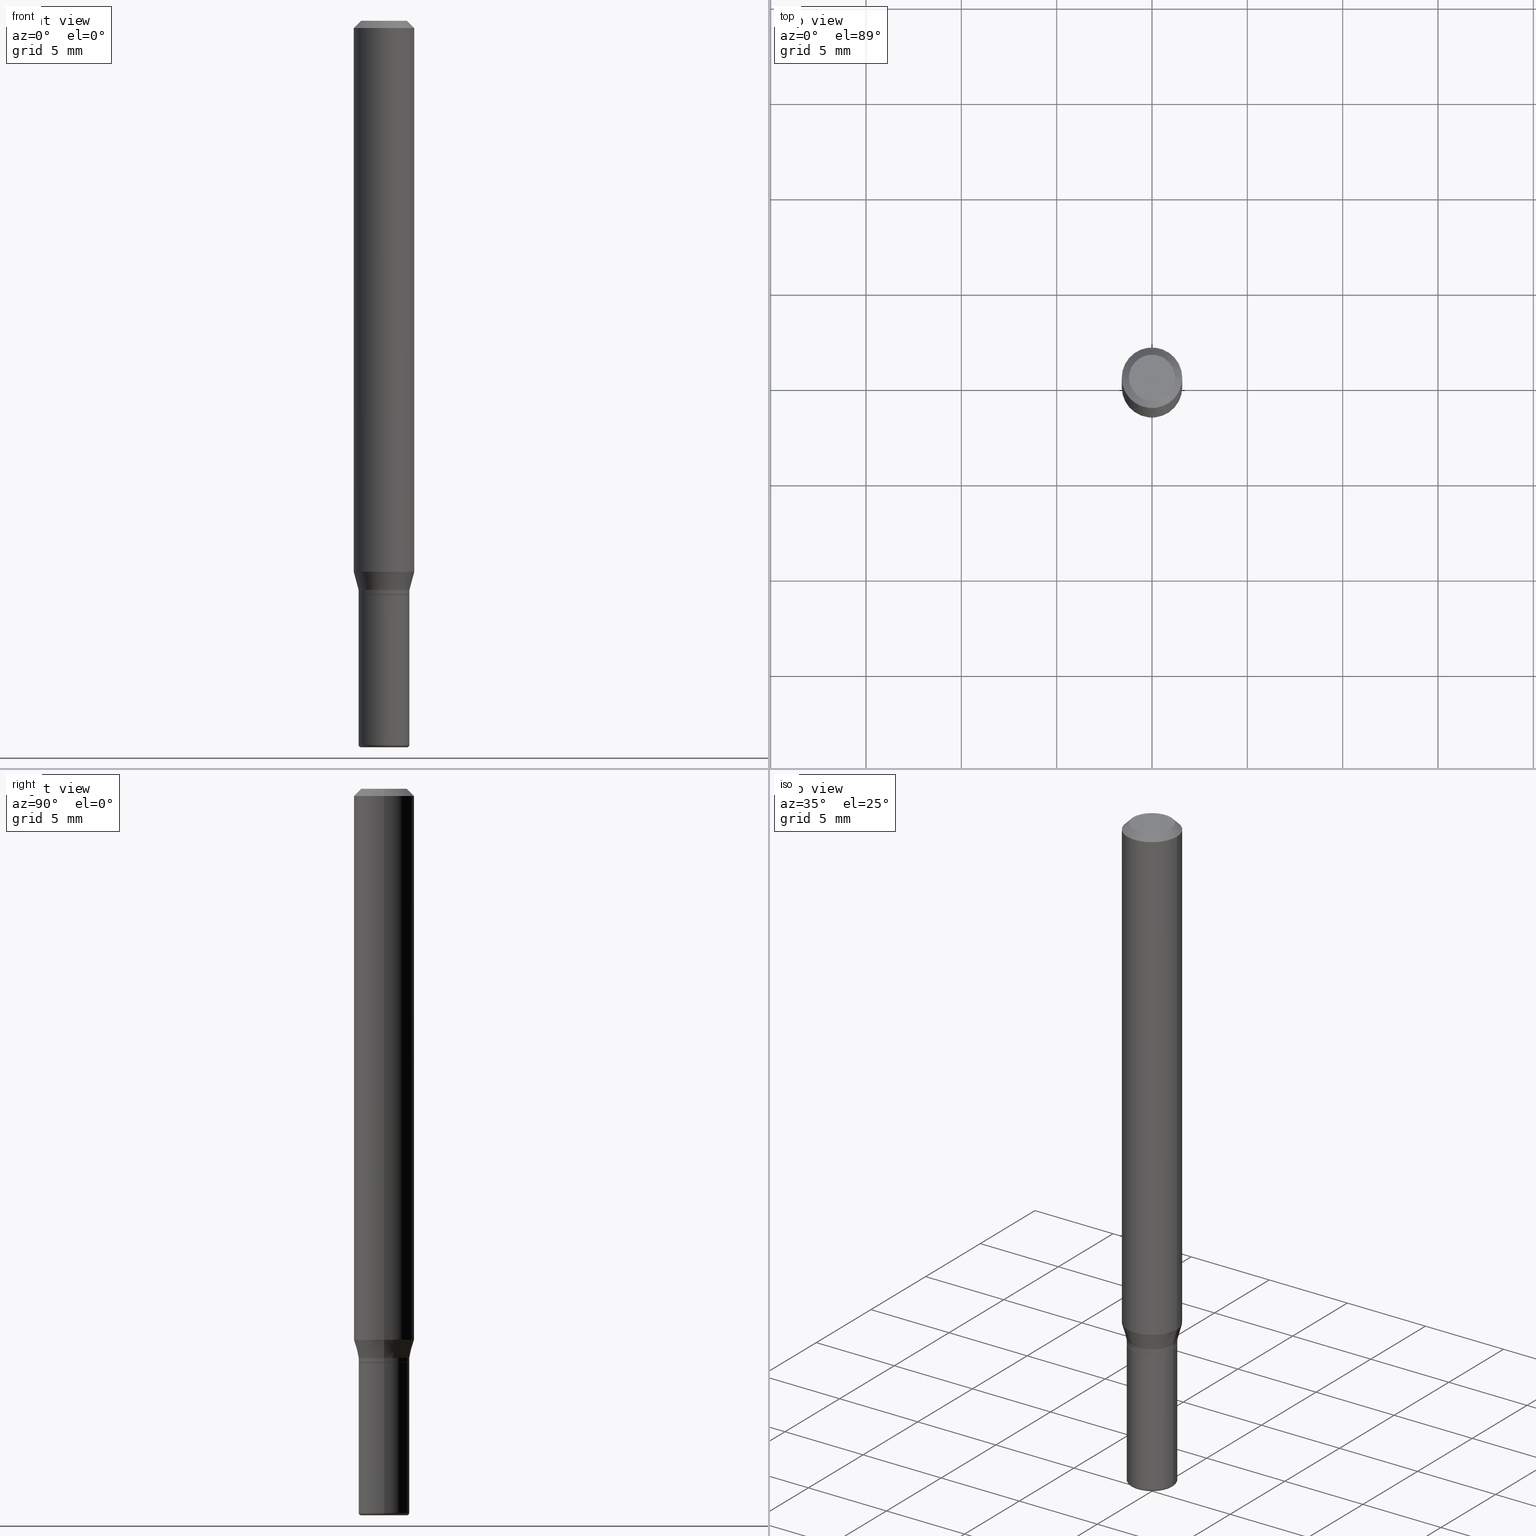
[diagram: canonical four-view strip — front | top / right | iso, engineering-drawing reading convention]
A machine part, canonical four-view strip (front | top / right | iso — engineering-drawing reading convention). The complete STEP part file that produces these views, byte-faithful:
ISO-10303-21;
HEADER;
FILE_DESCRIPTION (( 'STEP AP203' ),
    '1' );
FILE_NAME ('08602.STEP',
    '2024-02-29T19:56:55',
    ( '' ),
    ( '' ),
    'SwSTEP 2.0',
    'SolidWorks 2023',
    '' );
FILE_SCHEMA (( 'CONFIG_CONTROL_DESIGN' ));
ENDSEC;

DATA;
#1 = EDGE_CURVE ( 'NONE', #332, #110, #194, .T. ) ;
#2 = VECTOR ( 'NONE', #123, 39.37007874015748143 ) ;
#3 = ORIENTED_EDGE ( 'NONE', *, *, #243, .T. ) ;
#4 = ADVANCED_FACE ( 'NONE', ( #57 ), #365, .T. ) ;
#5 = VERTEX_POINT ( 'NONE', #177 ) ;
#6 = CARTESIAN_POINT ( 'NONE',  ( 0.05250000000000008826, -3.666055405785296038E-16, 2.559992807292870916E-30 ) ) ;
#7 = EDGE_CURVE ( 'NONE', #388, #237, #25, .T. ) ;
#8 = LOCAL_TIME ( 14, 56, 55.00000000000000000, #222 ) ;
#9 = ORIENTED_EDGE ( 'NONE', *, *, #477, .F. ) ;
#10 = CARTESIAN_POINT ( 'NONE',  ( 0.05250000000000007438, -4.469096113719226630E-15, -1.175000000000000488 ) ) ;
#11 = EDGE_LOOP ( 'NONE', ( #89, #486, #40, #33 ) ) ;
#12 = ADVANCED_FACE ( 'NONE', ( #182 ), #507, .T. ) ;
#13 = DIRECTION ( 'NONE',  ( -1.000000000000000000, 7.105427357601061812E-15, 0.000000000000000000 ) ) ;
#14 = AXIS2_PLACEMENT_3D ( 'NONE', #234, #316, #404 ) ;
#15 = CARTESIAN_POINT ( 'NONE',  ( 2.873425847267536398E-29, -4.102490573140697470E-15, -1.175000000000000488 ) ) ;
#16 = CARTESIAN_POINT ( 'NONE',  ( 0.000000000000000000, 0.000000000000000000, 0.000000000000000000 ) ) ;
#17 = CARTESIAN_POINT ( 'NONE',  ( -0.06250000000000000000, 4.440892098500626162E-16, -3.074334431409316114E-30 ) ) ;
#18 = CARTESIAN_POINT ( 'NONE',  ( 3.582686580359767159E-29, -5.359686688179454114E-15, -1.500000000000000444 ) ) ;
#19 = ORIENTED_EDGE ( 'NONE', *, *, #173, .T. ) ;
#20 = LINE ( 'NONE', #17, #2 ) ;
#21 = CARTESIAN_POINT ( 'NONE',  ( -0.05250000000000007438, -3.729455636866644935E-15, -1.175000000000000488 ) ) ;
#22 = LINE ( 'NONE', #179, #195 ) ;
#23 = DIRECTION ( 'NONE',  ( 1.000000000000000000, -6.982962677686258033E-15, 0.000000000000000000 ) ) ;
#24 = EDGE_LOOP ( 'NONE', ( #439, #183, #240, #336 ) ) ;
#25 = CIRCLE ( 'NONE', #437, 0.05249999999999999806 ) ;
#26 = LOCAL_TIME ( 14, 56, 55.00000000000000000, #98 ) ;
#27 = PERSON_AND_ORGANIZATION ( #435, #208 ) ;
#28 = ADVANCED_FACE ( 'NONE', ( #128 ), #213, .F. ) ;
#29 = FACE_OUTER_BOUND ( 'NONE', #428, .T. ) ;
#30 = APPROVAL_DATE_TIME ( #514, #338 ) ;
#31 = AXIS2_PLACEMENT_3D ( 'NONE', #15, #168, #288 ) ;
#32 = AXIS2_PLACEMENT_3D ( 'NONE', #452, #238, #226 ) ;
#33 = ORIENTED_EDGE ( 'NONE', *, *, #171, .F. ) ;
#34 = APPROVAL ( #374, 'UNSPECIFIED' ) ;
#35 = EDGE_LOOP ( 'NONE', ( #361, #196 ) ) ;
#36 = ORIENTED_EDGE ( 'NONE', *, *, #425, .F. ) ;
#37 = DIRECTION ( 'NONE',  ( -6.982962677686266711E-15, -1.000000000000000000, 3.491481338843145583E-15 ) ) ;
#38 = AXIS2_PLACEMENT_3D ( 'NONE', #232, #37, #360 ) ;
#39 = VECTOR ( 'NONE', #421, 39.37007874015748143 ) ;
#40 = ORIENTED_EDGE ( 'NONE', *, *, #352, .F. ) ;
#41 = DIRECTION ( 'NONE',  ( -2.445468806185136597E-29, 3.491481338843145583E-15, 1.000000000000000000 ) ) ;
#42 = DIRECTION ( 'NONE',  ( 1.000000000000000000, -6.982962677686258822E-15, 0.000000000000000000 ) ) ;
#43 = EDGE_CURVE ( 'NONE', #142, #359, #282, .T. ) ;
#44 = CIRCLE ( 'NONE', #239, 0.05250000000000007438 ) ;
#45 = LOCAL_TIME ( 14, 56, 55.00000000000000000, #347 ) ;
#46 = EDGE_CURVE ( 'NONE', #359, #388, #455, .T. ) ;
#47 = CARTESIAN_POINT ( 'NONE',  ( 2.896657800926294581E-29, -4.135659645859706826E-15, -1.184500000000000108 ) ) ;
#48 = DIRECTION ( 'NONE',  ( 0.000000000000000000, 0.000000000000000000, 1.000000000000000000 ) ) ;
#49 = DIRECTION ( 'NONE',  ( 1.000000000000000000, -6.982962677686266711E-15, 4.876176775795935793E-29 ) ) ;
#50 = DIRECTION ( 'NONE',  ( -2.445468806185136597E-29, 3.491481338843145583E-15, 1.000000000000000000 ) ) ;
#51 = TOROIDAL_SURFACE ( 'NONE', #465, 0.04749999999999999362, 0.005000000000000177046 ) ;
#52 = CARTESIAN_POINT ( 'NONE',  ( -0.04749999999999998668, -4.873221937037561039E-15, -1.500000000000000444 ) ) ;
#53 = ORIENTED_EDGE ( 'NONE', *, *, #77, .T. ) ;
#54 = CC_DESIGN_PERSON_AND_ORGANIZATION_ASSIGNMENT ( #269, #189, ( #324 ) ) ;
#55 = DIRECTION ( 'NONE',  ( -2.445468806185136597E-29, 3.491481338843145583E-15, 1.000000000000000000 ) ) ;
#56 = EDGE_CURVE ( 'NONE', #359, #64, #454, .T. ) ;
#57 = FACE_OUTER_BOUND ( 'NONE', #498, .T. ) ;
#58 = DIRECTION ( 'NONE',  ( 1.000000000000000000, -6.982962677686266711E-15, 4.876176775795935793E-29 ) ) ;
#59 = DIRECTION ( 'NONE',  ( 1.000000000000000000, -6.982962677686263555E-15, 4.883557194083111780E-29 ) ) ;
#60 = ORIENTED_EDGE ( 'NONE', *, *, #149, .T. ) ;
#61 = DIRECTION ( 'NONE',  ( -0.7071067811865479058, 2.468850131082261005E-15, -0.7071067811865471286 ) ) ;
#62 = CC_DESIGN_DATE_AND_TIME_ASSIGNMENT ( #105, #70, ( #324 ) ) ;
#63 = CARTESIAN_POINT ( 'NONE',  ( -6.680649051745406845E-45, 9.538196290434862081E-31, 2.731847993664263218E-16 ) ) ;
#64 = VERTEX_POINT ( 'NONE', #245 ) ;
#65 = CIRCLE ( 'NONE', #14, 0.05200000000000008782 ) ;
#66 = CALENDAR_DATE ( 2024, 29, 2 ) ;
#67 = DIRECTION ( 'NONE',  ( 1.000000000000000000, -6.982962677686263555E-15, 4.883557194083111780E-29 ) ) ;
#68 = EDGE_CURVE ( 'NONE', #318, #331, #44, .T. ) ;
#69 = APPROVAL_DATE_TIME ( #227, #468 ) ;
#70 = DATE_TIME_ROLE ( 'classification_date' ) ;
#71 = AXIS2_PLACEMENT_3D ( 'NONE', #84, #211, #453 ) ;
#72 = VERTEX_POINT ( 'NONE', #174 ) ;
#73 = ADVANCED_FACE ( 'NONE', ( #83 ), #204, .F. ) ;
#74 = ORIENTED_EDGE ( 'NONE', *, *, #334, .F. ) ;
#75 = ORIENTED_EDGE ( 'NONE', *, *, #190, .F. ) ;
#76 = DIRECTION ( 'NONE',  ( -2.445468806185136877E-29, 3.491481338843145188E-15, 1.000000000000000000 ) ) ;
#77 = EDGE_CURVE ( 'NONE', #332, #328, #330, .T. ) ;
#78 = AXIS2_PLACEMENT_3D ( 'NONE', #471, #262, #430 ) ;
#79 = CARTESIAN_POINT ( 'NONE',  ( 3.668203209277632395E-31, -5.237222008264614861E-17, -0.01499999999999970281 ) ) ;
#80 = FACE_OUTER_BOUND ( 'NONE', #384, .T. ) ;
#81 = CIRCLE ( 'NONE', #385, 0.04750000000000000749 ) ;
#82 = AXIS2_PLACEMENT_3D ( 'NONE', #499, #185, #345 ) ;
#83 = FACE_OUTER_BOUND ( 'NONE', #372, .T. ) ;
#84 = CARTESIAN_POINT ( 'NONE',  ( 3.668203209277706016E-29, -5.237222008264719754E-15, -1.500000000000000444 ) ) ;
#85 = DIRECTION ( 'NONE',  ( -2.445468806185136597E-29, 3.491481338843145583E-15, 1.000000000000000000 ) ) ;
#86 = CARTESIAN_POINT ( 'NONE',  ( 0.04750000000000000749, -4.035134999187568762E-16, 2.731847993664288856E-16 ) ) ;
#87 = EDGE_CURVE ( 'NONE', #400, #244, #199, .T. ) ;
#88 = DIRECTION ( 'NONE',  ( 0.7071067811865479058, -7.319954787623257623E-15, -0.7071067811865471286 ) ) ;
#89 = ORIENTED_EDGE ( 'NONE', *, *, #377, .T. ) ;
#90 = LINE ( 'NONE', #369, #136 ) ;
#91 = AXIS2_PLACEMENT_3D ( 'NONE', #329, #184, #342 ) ;
#92 = CARTESIAN_POINT ( 'NONE',  ( 3.655975865246779122E-29, -5.219764601570503141E-15, -1.495000000000000107 ) ) ;
#93 = DIRECTION ( 'NONE',  ( -2.445468806185136597E-29, 3.491481338843145583E-15, 1.000000000000000000 ) ) ;
#94 = DIRECTION ( 'NONE',  ( -2.438088387897960049E-29, 3.491481338843145188E-15, 1.000000000000000000 ) ) ;
#95 = CARTESIAN_POINT ( 'NONE',  ( 0.05250000000000008132, -3.666055405785295545E-16, 2.559992807292870215E-30 ) ) ;
#96 = DATE_AND_TIME ( #481, #503 ) ;
#97 = ORIENTED_EDGE ( 'NONE', *, *, #224, .T. ) ;
#98 = COORDINATED_UNIVERSAL_TIME_OFFSET ( 5, 0, .BEHIND. ) ;
#99 = CIRCLE ( 'NONE', #296, 0.05249999999999999806 ) ;
#100 = CIRCLE ( 'NONE', #337, 0.05250000000000008826 ) ;
#101 = CARTESIAN_POINT ( 'NONE',  ( 0.000000000000000000, 0.000000000000000000, 0.000000000000000000 ) ) ;
#102 = DIRECTION ( 'NONE',  ( -2.445468806185136597E-29, 3.491481338843145583E-15, 1.000000000000000000 ) ) ;
#103 = DIRECTION ( 'NONE',  ( -1.000000000000000000, 6.982962677686266711E-15, 0.000000000000000000 ) ) ;
#104 = PRODUCT_RELATED_PRODUCT_CATEGORY ( 'detail', '', ( #170 ) ) ;
#105 = DATE_AND_TIME ( #433, #26 ) ;
#106 = ORIENTED_EDGE ( 'NONE', *, *, #119, .F. ) ;
#107 = SECURITY_CLASSIFICATION_LEVEL ( 'unclassified' ) ;
#108 = AXIS2_PLACEMENT_3D ( 'NONE', #158, #41, #276 ) ;
#109 = CC_DESIGN_APPROVAL ( #338, ( #405 ) ) ;
#110 = VERTEX_POINT ( 'NONE', #255 ) ;
#111 = DIRECTION ( 'NONE',  ( 1.000000000000000000, -6.982962677686266711E-15, 0.000000000000000000 ) ) ;
#112 = DIRECTION ( 'NONE',  ( 0.2588190451025205729, 1.565188264969628081E-15, 0.9659258262890684232 ) ) ;
#113 = ORIENTED_EDGE ( 'NONE', *, *, #319, .F. ) ;
#114 = DIRECTION ( 'NONE',  ( 1.000000000000000000, -6.982962677686263555E-15, 0.000000000000000000 ) ) ;
#115 = ADVANCED_FACE ( 'NONE', ( #250 ), #370, .T. ) ;
#116 = ORIENTED_EDGE ( 'NONE', *, *, #450, .F. ) ;
#117 = CARTESIAN_POINT ( 'NONE',  ( 2.897880535329386822E-29, -4.137405386529127541E-15, -1.185000000000000053 ) ) ;
#118 = ADVANCED_BREP_SHAPE_REPRESENTATION ( '08602', ( #219, #401, #366 ), #394 ) ;
#119 = EDGE_CURVE ( 'NONE', #331, #318, #488, .T. ) ;
#120 = AXIS2_PLACEMENT_3D ( 'NONE', #376, #55, #165 ) ;
#121 = DIMENSIONAL_EXPONENTS ( 1.000000000000000000, 0.000000000000000000, 0.000000000000000000, 0.000000000000000000, 0.000000000000000000, 0.000000000000000000, 0.000000000000000000 ) ;
#122 = PRODUCT_DEFINITION_SHAPE ( 'NONE', 'NONE',  #441 ) ;
#123 = DIRECTION ( 'NONE',  ( -2.445468806185136877E-29, 3.491481338843145188E-15, 1.000000000000000000 ) ) ;
#124 = DIRECTION ( 'NONE',  ( -2.445468806185136597E-29, 3.491481338843145583E-15, 1.000000000000000000 ) ) ;
#125 = CARTESIAN_POINT ( 'NONE',  ( 2.897880535329386822E-29, -4.137405386529127541E-15, -1.185000000000000053 ) ) ;
#126 = CIRCLE ( 'NONE', #38, 0.005000000000000177046 ) ;
#127 = AXIS2_PLACEMENT_3D ( 'NONE', #101, #102, #58 ) ;
#128 = FACE_OUTER_BOUND ( 'NONE', #233, .T. ) ;
#129 = ORIENTED_EDGE ( 'NONE', *, *, #43, .F. ) ;
#130 = DIRECTION ( 'NONE',  ( -2.438088387897960049E-29, 3.491481338843145188E-15, 1.000000000000000000 ) ) ;
#131 = VERTEX_POINT ( 'NONE', #416 ) ;
#132 = FACE_OUTER_BOUND ( 'NONE', #402, .T. ) ;
#133 = DIRECTION ( 'NONE',  ( -2.445468806185136597E-29, 3.491481338843145583E-15, 1.000000000000000000 ) ) ;
#134 = CARTESIAN_POINT ( 'NONE',  ( 3.655975865246779122E-29, -5.219764601570503141E-15, -1.495000000000000107 ) ) ;
#135 = CLOSED_SHELL ( 'NONE', ( #442, #274, #380, #407, #154, #28 ) ) ;
#136 = VECTOR ( 'NONE', #409, 39.37007874015748143 ) ;
#137 = DIRECTION ( 'NONE',  ( 1.000000000000000000, -6.982962677686265133E-15, 0.000000000000000000 ) ) ;
#138 = CONICAL_SURFACE ( 'NONE', #32, 0.06250000000000000000, 0.7853981633974488341 ) ;
#139 = CARTESIAN_POINT ( 'NONE',  ( -0.05200000000000008782, -3.765273936759763915E-15, -1.185000000000000053 ) ) ;
#140 = DIRECTION ( 'NONE',  ( 1.000000000000000000, -6.982962677686270655E-15, 0.000000000000000000 ) ) ;
#141 = DIRECTION ( 'NONE',  ( 1.000000000000000000, -6.982962677686265922E-15, 4.876176775795935793E-29 ) ) ;
#142 = VERTEX_POINT ( 'NONE', #52 ) ;
#143 = PERSON_AND_ORGANIZATION_ROLE ( 'creator' ) ;
#144 = CARTESIAN_POINT ( 'NONE',  ( -0.06250000000000000000, 3.840629472727455270E-16, -0.01499999999999970281 ) ) ;
#145 = PERSON_AND_ORGANIZATION_ROLE ( 'design_supplier' ) ;
#146 = AXIS2_PLACEMENT_3D ( 'NONE', #18, #130, #141 ) ;
#147 = APPROVAL_PERSON_ORGANIZATION ( #458, #34, #327 ) ;
#148 = CC_DESIGN_PERSON_AND_ORGANIZATION_ASSIGNMENT ( #260, #427, ( #405 ) ) ;
#149 = EDGE_CURVE ( 'NONE', #318, #294, #420, .T. ) ;
#150 = APPROVAL_DATE_TIME ( #96, #34 ) ;
#151 = ORIENTED_EDGE ( 'NONE', *, *, #1, .T. ) ;
#152 = APPROVAL_STATUS ( 'not_yet_approved' ) ;
#153 = EDGE_LOOP ( 'NONE', ( #163, #311, #273, #231 ) ) ;
#154 = ADVANCED_FACE ( 'NONE', ( #378 ), #51, .T. ) ;
#155 = ORIENTED_EDGE ( 'NONE', *, *, #87, .F. ) ;
#156 = ORIENTED_EDGE ( 'NONE', *, *, #344, .F. ) ;
#157 = EDGE_CURVE ( 'NONE', #244, #318, #298, .T. ) ;
#158 = CARTESIAN_POINT ( 'NONE',  ( 2.897880535329386822E-29, -4.137405386529127541E-15, -1.185000000000000053 ) ) ;
#159 = AXIS2_PLACEMENT_3D ( 'NONE', #212, #214, #466 ) ;
#160 = AXIS2_PLACEMENT_3D ( 'NONE', #419, #209, #140 ) ;
#161 = EDGE_CURVE ( 'NONE', #5, #328, #180, .T. ) ;
#162 = DIRECTION ( 'NONE',  ( -2.445468806185136597E-29, 3.491481338843145583E-15, 1.000000000000000000 ) ) ;
#163 = ORIENTED_EDGE ( 'NONE', *, *, #352, .T. ) ;
#164 = DIRECTION ( 'NONE',  ( -2.445468806185136597E-29, 3.491481338843145583E-15, 1.000000000000000000 ) ) ;
#165 = DIRECTION ( 'NONE',  ( 1.000000000000000000, -6.982962677686270655E-15, 0.000000000000000000 ) ) ;
#166 = CIRCLE ( 'NONE', #108, 0.05200000000000008782 ) ;
#167 = ORIENTED_EDGE ( 'NONE', *, *, #377, .F. ) ;
#168 = DIRECTION ( 'NONE',  ( -2.445468806185136597E-29, 3.491481338843145583E-15, 1.000000000000000000 ) ) ;
#169 = LINE ( 'NONE', #289, #39 ) ;
#170 = PRODUCT ( '08602', '08602', '', ( #251 ) ) ;
#171 = EDGE_CURVE ( 'NONE', #131, #64, #126, .T. ) ;
#172 = CARTESIAN_POINT ( 'NONE',  ( 3.668203209277632395E-31, -5.237222008264614861E-17, -0.01499999999999970281 ) ) ;
#173 = EDGE_CURVE ( 'NONE', #351, #284, #166, .T. ) ;
#174 = CARTESIAN_POINT ( 'NONE',  ( 0.06250000000000000000, -4.408621882993678121E-15, -1.137679491924311836 ) ) ;
#175 = PERSON_AND_ORGANIZATION ( #435, #208 ) ;
#176 = ORIENTED_EDGE ( 'NONE', *, *, #344, .T. ) ;
#177 = CARTESIAN_POINT ( 'NONE',  ( -0.06250000000000000000, -1.568190258010403558E-15, -0.01499999999999970281 ) ) ;
#178 =( LENGTH_UNIT ( ) NAMED_UNIT ( * ) SI_UNIT ( $, .METRE. ) );
#179 = CARTESIAN_POINT ( 'NONE',  ( 0.05250000000000007438, -4.469096113719226630E-15, -1.175000000000000488 ) ) ;
#180 = CIRCLE ( 'NONE', #356, 0.06250000000000000000 ) ;
#181 = AXIS2_PLACEMENT_3D ( 'NONE', #125, #162, #283 ) ;
#182 = FACE_OUTER_BOUND ( 'NONE', #308, .T. ) ;
#183 = ORIENTED_EDGE ( 'NONE', *, *, #314, .F. ) ;
#184 = DIRECTION ( 'NONE',  ( -2.445468806185136597E-29, 3.491481338843145583E-15, 1.000000000000000000 ) ) ;
#185 = DIRECTION ( 'NONE',  ( -2.445468806185136597E-29, 3.491481338843145583E-15, 1.000000000000000000 ) ) ;
#186 = COORDINATED_UNIVERSAL_TIME_OFFSET ( 5, 0, .BEHIND. ) ;
#187 = AXIS2_PLACEMENT_3D ( 'NONE', #285, #373, #49 ) ;
#188 = ORIENTED_EDGE ( 'NONE', *, *, #236, .T. ) ;
#189 = PERSON_AND_ORGANIZATION_ROLE ( 'classification_officer' ) ;
#190 = EDGE_CURVE ( 'NONE', #142, #131, #309, .T. ) ;
#191 = ORIENTED_EDGE ( 'NONE', *, *, #477, .T. ) ;
#192 = ORIENTED_EDGE ( 'NONE', *, *, #314, .T. ) ;
#193 = CARTESIAN_POINT ( 'NONE',  ( 3.668203209277706016E-29, -5.237222008264719754E-15, -1.500000000000000444 ) ) ;
#194 = CIRCLE ( 'NONE', #159, 0.04750000000000000749 ) ;
#195 = VECTOR ( 'NONE', #112, 39.37007874015748143 ) ;
#196 = ORIENTED_EDGE ( 'NONE', *, *, #224, .F. ) ;
#197 = LINE ( 'NONE', #6, #335 ) ;
#198 = CARTESIAN_POINT ( 'NONE',  ( -0.05250000000000008826, -3.762624709585653503E-15, -1.184500000000000108 ) ) ;
#199 = CIRCLE ( 'NONE', #317, 0.05250000000000008826 ) ;
#200 = AXIS2_PLACEMENT_3D ( 'NONE', #325, #50, #490 ) ;
#201 = APPROVAL_PERSON_ORGANIZATION ( #517, #338, #265 ) ;
#202 = ORIENTED_EDGE ( 'NONE', *, *, #362, .T. ) ;
#203 = CARTESIAN_POINT ( 'NONE',  ( 2.873425847267536398E-29, -4.102490573140697470E-15, -1.175000000000000488 ) ) ;
#204 = PLANE ( 'NONE',  #403 ) ;
#205 = CARTESIAN_POINT ( 'NONE',  ( 0.06250000000000000000, -4.888073874380378612E-16, -0.01499999999999970281 ) ) ;
#206 = DIRECTION ( 'NONE',  ( 1.000000000000000000, -6.982962677686263555E-15, 0.000000000000000000 ) ) ;
#207 = CIRCLE ( 'NONE', #120, 0.06250000000000000000 ) ;
#208 = ORGANIZATION ( 'UNSPECIFIED', 'UNSPECIFIED', '' ) ;
#209 = DIRECTION ( 'NONE',  ( -2.445468806185136597E-29, 3.491481338843145583E-15, 1.000000000000000000 ) ) ;
#210 = DIRECTION ( 'NONE',  ( -0.2588190451025205729, 5.211531920934545520E-15, 0.9659258262890684232 ) ) ;
#211 = DIRECTION ( 'NONE',  ( -2.445468806185136597E-29, 3.491481338843145583E-15, 1.000000000000000000 ) ) ;
#212 = CARTESIAN_POINT ( 'NONE',  ( -6.680649051745406845E-45, 9.538196290434862081E-31, 2.731847993664263218E-16 ) ) ;
#213 = PLANE ( 'NONE',  #146 ) ;
#214 = DIRECTION ( 'NONE',  ( -2.445468806185136597E-29, 3.491481338843145583E-15, 1.000000000000000000 ) ) ;
#215 = CARTESIAN_POINT ( 'NONE',  ( -0.05250000000000008132, 3.730349362740531754E-16, -2.582440922383829865E-30 ) ) ;
#216 =( NAMED_UNIT ( * ) PLANE_ANGLE_UNIT ( ) SI_UNIT ( $, .RADIAN. ) );
#217 = ORIENTED_EDGE ( 'NONE', *, *, #68, .T. ) ;
#218 = VECTOR ( 'NONE', #259, 39.37007874015748143 ) ;
#219 = MANIFOLD_SOLID_BREP ( 'Body-Move/Copy2[1]', #135 ) ;
#220 = ORIENTED_EDGE ( 'NONE', *, *, #223, .T. ) ;
#221 = CARTESIAN_POINT ( 'NONE',  ( 0.05250000000000008826, -4.502265186438236775E-15, -1.184500000000000108 ) ) ;
#222 = COORDINATED_UNIVERSAL_TIME_OFFSET ( 5, 0, .BEHIND. ) ;
#223 = EDGE_CURVE ( 'NONE', #72, #328, #363, .T. ) ;
#224 = EDGE_CURVE ( 'NONE', #284, #351, #65, .T. ) ;
#225 = APPROVAL_STATUS ( 'not_yet_approved' ) ;
#226 = DIRECTION ( 'NONE',  ( -1.000000000000000000, 6.982962677686266711E-15, 0.000000000000000000 ) ) ;
#227 = DATE_AND_TIME ( #436, #515 ) ;
#228 = AXIS2_PLACEMENT_3D ( 'NONE', #92, #247, #206 ) ;
#229 = CC_DESIGN_APPROVAL ( #34, ( #441 ) ) ;
#230 = ORIENTED_EDGE ( 'NONE', *, *, #161, .F. ) ;
#231 = ORIENTED_EDGE ( 'NONE', *, *, #236, .F. ) ;
#232 = CARTESIAN_POINT ( 'NONE',  ( 0.04749999999999999362, -5.551455328760600652E-15, -1.495000000000000107 ) ) ;
#233 = EDGE_LOOP ( 'NONE', ( #167, #75 ) ) ;
#234 = CARTESIAN_POINT ( 'NONE',  ( 2.897880535329386822E-29, -4.137405386529127541E-15, -1.185000000000000053 ) ) ;
#235 = VECTOR ( 'NONE', #76, 39.37007874015748143 ) ;
#236 = EDGE_CURVE ( 'NONE', #64, #237, #197, .T. ) ;
#237 = VERTEX_POINT ( 'NONE', #487 ) ;
#238 = DIRECTION ( 'NONE',  ( 2.445468806185136597E-29, -3.491481338843145583E-15, -1.000000000000000000 ) ) ;
#239 = AXIS2_PLACEMENT_3D ( 'NONE', #321, #164, #423 ) ;
#240 = ORIENTED_EDGE ( 'NONE', *, *, #425, .T. ) ;
#241 = CIRCLE ( 'NONE', #431, 0.06250000000000000000 ) ;
#242 = DIRECTION ( 'NONE',  ( 1.000000000000000000, -6.982962677686266711E-15, 4.852736867747365086E-29 ) ) ;
#243 = EDGE_CURVE ( 'NONE', #237, #388, #99, .T. ) ;
#244 = VERTEX_POINT ( 'NONE', #198 ) ;
#245 = CARTESIAN_POINT ( 'NONE',  ( 0.05250000000000017153, -5.586370142149033090E-15, -1.495000000000000107 ) ) ;
#246 = PLANE ( 'NONE',  #306 ) ;
#247 = DIRECTION ( 'NONE',  ( -2.445468806185136597E-29, 3.491481338843145583E-15, 1.000000000000000000 ) ) ;
#248 =( CONVERSION_BASED_UNIT ( 'INCH', #424 ) LENGTH_UNIT ( ) NAMED_UNIT ( #121 ) );
#249 = CARTESIAN_POINT ( 'NONE',  ( 0.05200000000000008782, -4.500519445768814483E-15, -1.185000000000000053 ) ) ;
#250 = FACE_OUTER_BOUND ( 'NONE', #277, .T. ) ;
#251 = MECHANICAL_CONTEXT ( 'NONE', #411, 'mechanical' ) ;
#252 = ORIENTED_EDGE ( 'NONE', *, *, #46, .F. ) ;
#253 = DIRECTION ( 'NONE',  ( 1.000000000000000000, -6.982962677686266711E-15, 0.000000000000000000 ) ) ;
#254 = VECTOR ( 'NONE', #210, 39.37007874015748143 ) ;
#255 = CARTESIAN_POINT ( 'NONE',  ( -0.04750000000000000749, 3.578768372314221353E-16, 2.731847993664239060E-16 ) ) ;
#256 = CARTESIAN_POINT ( 'NONE',  ( -0.04749999999999999362, -4.882256802084455647E-15, -1.495000000000000107 ) ) ;
#257 = CARTESIAN_POINT ( 'NONE',  ( 2.897880535329386822E-29, -4.137405386529127541E-15, -1.185000000000000053 ) ) ;
#258 = DIRECTION ( 'NONE',  ( -2.445468806185136597E-29, 3.491481338843145583E-15, 1.000000000000000000 ) ) ;
#259 = DIRECTION ( 'NONE',  ( -2.445468806185136877E-29, 3.491481338843145188E-15, 1.000000000000000000 ) ) ;
#260 = PERSON_AND_ORGANIZATION ( #435, #208 ) ;
#261 = ORIENTED_EDGE ( 'NONE', *, *, #157, .T. ) ;
#262 = DIRECTION ( 'NONE',  ( -2.445468806185136597E-29, 3.491481338843145583E-15, 1.000000000000000000 ) ) ;
#263 = VECTOR ( 'NONE', #333, 39.37007874015748143 ) ;
#264 = DATE_TIME_ROLE ( 'creation_date' ) ;
#265 = APPROVAL_ROLE ( '' ) ;
#266 = DIRECTION ( 'NONE',  ( 1.000000000000000000, -6.982962677686265133E-15, 0.000000000000000000 ) ) ;
#267 = ADVANCED_FACE ( 'NONE', ( #506 ), #348, .T. ) ;
#268 = FACE_OUTER_BOUND ( 'NONE', #35, .T. ) ;
#269 = PERSON_AND_ORGANIZATION ( #435, #208 ) ;
#270 = ORIENTED_EDGE ( 'NONE', *, *, #450, .T. ) ;
#271 = AXIS2_PLACEMENT_3D ( 'NONE', #203, #460, #280 ) ;
#272 = CIRCLE ( 'NONE', #160, 0.06250000000000000000 ) ;
#273 = ORIENTED_EDGE ( 'NONE', *, *, #243, .F. ) ;
#274 = ADVANCED_FACE ( 'NONE', ( #303 ), #354, .T. ) ;
#275 = ORIENTED_EDGE ( 'NONE', *, *, #7, .F. ) ;
#276 = DIRECTION ( 'NONE',  ( 1.000000000000000000, -6.982962677686274599E-15, 0.000000000000000000 ) ) ;
#277 = EDGE_LOOP ( 'NONE', ( #497, #176, #301, #446 ) ) ;
#278 = DIRECTION ( 'NONE',  ( -2.445468806185136597E-29, 3.491481338843145583E-15, 1.000000000000000000 ) ) ;
#279 = FACE_OUTER_BOUND ( 'NONE', #24, .T. ) ;
#280 = DIRECTION ( 'NONE',  ( 1.000000000000000000, -6.982962677686258033E-15, 0.000000000000000000 ) ) ;
#281 = ORIENTED_EDGE ( 'NONE', *, *, #56, .F. ) ;
#282 = CIRCLE ( 'NONE', #473, 0.005000000000000177046 ) ;
#283 = DIRECTION ( 'NONE',  ( 1.000000000000000000, -6.982962677686274599E-15, 0.000000000000000000 ) ) ;
#284 = VERTEX_POINT ( 'NONE', #139 ) ;
#285 = CARTESIAN_POINT ( 'NONE',  ( 0.000000000000000000, 0.000000000000000000, 0.000000000000000000 ) ) ;
#286 = APPLICATION_PROTOCOL_DEFINITION ( 'international standard', 'config_control_design', 1994, #491 ) ;
#287 = CARTESIAN_POINT ( 'NONE',  ( -0.05250000000000007438, -3.628776571327434780E-15, -1.175000000000000488 ) ) ;
#288 = DIRECTION ( 'NONE',  ( 1.000000000000000000, -6.982962677686258033E-15, 0.000000000000000000 ) ) ;
#289 = CARTESIAN_POINT ( 'NONE',  ( -0.05200000000000008782, -3.767923163933875116E-15, -1.185000000000000053 ) ) ;
#290 = EDGE_LOOP ( 'NONE', ( #19, #408, #155, #74 ) ) ;
#291 = DIRECTION ( 'NONE',  ( 2.438088387897960049E-29, -3.491481338843145188E-15, -1.000000000000000000 ) ) ;
#292 = CC_DESIGN_DATE_AND_TIME_ASSIGNMENT ( #479, #264, ( #441 ) ) ;
#293 = DIRECTION ( 'NONE',  ( 1.000000000000000000, -6.982962677686258822E-15, 0.000000000000000000 ) ) ;
#294 = VERTEX_POINT ( 'NONE', #346 ) ;
#295 = DIRECTION ( 'NONE',  ( -2.445468806185136597E-29, 3.491481338843145583E-15, 1.000000000000000000 ) ) ;
#296 = AXIS2_PLACEMENT_3D ( 'NONE', #117, #278, #42 ) ;
#297 = AXIS2_PLACEMENT_3D ( 'NONE', #134, #476, #67 ) ;
#298 = LINE ( 'NONE', #215, #218 ) ;
#299 = LINE ( 'NONE', #144, #349 ) ;
#300 = CARTESIAN_POINT ( 'NONE',  ( 3.668203209277632395E-31, -5.237222008264614861E-17, -0.01499999999999970281 ) ) ;
#301 = ORIENTED_EDGE ( 'NONE', *, *, #362, .F. ) ;
#302 = FACE_OUTER_BOUND ( 'NONE', #353, .T. ) ;
#303 = FACE_OUTER_BOUND ( 'NONE', #153, .T. ) ;
#304 = ADVANCED_FACE ( 'NONE', ( #392 ), #482, .T. ) ;
#305 = FACE_OUTER_BOUND ( 'NONE', #480, .T. ) ;
#306 = AXIS2_PLACEMENT_3D ( 'NONE', #494, #291, #463 ) ;
#307 = ORIENTED_EDGE ( 'NONE', *, *, #1, .F. ) ;
#308 = EDGE_LOOP ( 'NONE', ( #156, #191, #220, #230 ) ) ;
#309 = CIRCLE ( 'NONE', #323, 0.04749999999999998668 ) ;
#310 = ADVANCED_FACE ( 'NONE', ( #268 ), #469, .F. ) ;
#311 = ORIENTED_EDGE ( 'NONE', *, *, #46, .T. ) ;
#312 = ORIENTED_EDGE ( 'NONE', *, *, #505, .F. ) ;
#313 = DIRECTION ( 'NONE',  ( -2.445468806185136877E-29, 3.491481338843145188E-15, 1.000000000000000000 ) ) ;
#314 = EDGE_CURVE ( 'NONE', #110, #332, #81, .T. ) ;
#315 = ORIENTED_EDGE ( 'NONE', *, *, #119, .T. ) ;
#316 = DIRECTION ( 'NONE',  ( -2.445468806185136597E-29, 3.491481338843145583E-15, 1.000000000000000000 ) ) ;
#317 = AXIS2_PLACEMENT_3D ( 'NONE', #47, #501, #137 ) ;
#318 = VERTEX_POINT ( 'NONE', #287 ) ;
#319 = EDGE_CURVE ( 'NONE', #72, #294, #207, .T. ) ;
#320 = ADVANCED_FACE ( 'NONE', ( #80 ), #438, .T. ) ;
#321 = CARTESIAN_POINT ( 'NONE',  ( 2.873425847267536398E-29, -4.102490573140697470E-15, -1.175000000000000488 ) ) ;
#322 = PERSON_AND_ORGANIZATION_ROLE ( 'design_owner' ) ;
#323 = AXIS2_PLACEMENT_3D ( 'NONE', #193, #357, #114 ) ;
#324 = SECURITY_CLASSIFICATION ( '', '', #107 ) ;
#325 = CARTESIAN_POINT ( 'NONE',  ( 3.655975865246779122E-29, -5.219764601570503141E-15, -1.495000000000000107 ) ) ;
#326 = CARTESIAN_POINT ( 'NONE',  ( -0.05250000000000008826, 3.730349362740532247E-16, -2.582440922383829865E-30 ) ) ;
#327 = APPROVAL_ROLE ( '' ) ;
#328 = VERTEX_POINT ( 'NONE', #205 ) ;
#329 = CARTESIAN_POINT ( 'NONE',  ( 0.000000000000000000, 0.000000000000000000, 0.000000000000000000 ) ) ;
#330 = LINE ( 'NONE', #495, #429 ) ;
#331 = VERTEX_POINT ( 'NONE', #10 ) ;
#332 = VERTEX_POINT ( 'NONE', #86 ) ;
#333 = DIRECTION ( 'NONE',  ( -2.445468806185136877E-29, 3.491481338843145188E-15, 1.000000000000000000 ) ) ;
#334 = EDGE_CURVE ( 'NONE', #351, #400, #90, .T. ) ;
#335 = VECTOR ( 'NONE', #313, 39.37007874015748143 ) ;
#336 = ORIENTED_EDGE ( 'NONE', *, *, #161, .T. ) ;
#337 = AXIS2_PLACEMENT_3D ( 'NONE', #434, #295, #266 ) ;
#338 = APPROVAL ( #225, 'UNSPECIFIED' ) ;
#339 = DIRECTION ( 'NONE',  ( -2.445468806185136597E-29, 3.491481338843145583E-15, 1.000000000000000000 ) ) ;
#340 = ORIENTED_EDGE ( 'NONE', *, *, #459, .F. ) ;
#341 = CYLINDRICAL_SURFACE ( 'NONE', #82, 0.05250000000000008826 ) ;
#342 = DIRECTION ( 'NONE',  ( 1.000000000000000000, -6.982962677686266711E-15, 4.876176775795936353E-29 ) ) ;
#343 = CARTESIAN_POINT ( 'NONE',  ( 2.897880535329386822E-29, -4.137405386529127541E-15, -1.185000000000000053 ) ) ;
#344 = EDGE_CURVE ( 'NONE', #294, #5, #20, .T. ) ;
#345 = DIRECTION ( 'NONE',  ( 1.000000000000000000, -6.982962677686266711E-15, 4.876176775795936353E-29 ) ) ;
#346 = CARTESIAN_POINT ( 'NONE',  ( -0.06250000000000000000, -3.528097505788223835E-15, -1.137679491924311836 ) ) ;
#347 = COORDINATED_UNIVERSAL_TIME_OFFSET ( 5, 0, .BEHIND. ) ;
#348 = CONICAL_SURFACE ( 'NONE', #502, 0.05200000000000008782, 0.7853981633975507526 ) ;
#349 = VECTOR ( 'NONE', #61, 39.37007874015748143 ) ;
#350 = ADVANCED_FACE ( 'NONE', ( #367 ), #475, .T. ) ;
#351 = VERTEX_POINT ( 'NONE', #249 ) ;
#352 = EDGE_CURVE ( 'NONE', #64, #359, #504, .T. ) ;
#353 = EDGE_LOOP ( 'NONE', ( #422, #270, #368, #444 ) ) ;
#354 = CYLINDRICAL_SURFACE ( 'NONE', #91, 0.05250000000000008826 ) ;
#355 = EDGE_LOOP ( 'NONE', ( #508, #97, #484, #116 ) ) ;
#356 = AXIS2_PLACEMENT_3D ( 'NONE', #79, #485, #111 ) ;
#357 = DIRECTION ( 'NONE',  ( -2.445468806185136597E-29, 3.491481338843145583E-15, 1.000000000000000000 ) ) ;
#358 = CC_DESIGN_APPROVAL ( #468, ( #324 ) ) ;
#359 = VERTEX_POINT ( 'NONE', #456 ) ;
#360 = DIRECTION ( 'NONE',  ( 1.000000000000000000, -6.982962677686280121E-15, 0.000000000000000000 ) ) ;
#361 = ORIENTED_EDGE ( 'NONE', *, *, #173, .F. ) ;
#362 = EDGE_CURVE ( 'NONE', #328, #5, #241, .T. ) ;
#363 = LINE ( 'NONE', #445, #235 ) ;
#364 = DIRECTION ( 'NONE',  ( -2.445468806185136877E-29, 3.491481338843145188E-15, 1.000000000000000000 ) ) ;
#365 = CONICAL_SURFACE ( 'NONE', #418, 0.05250000000000007438, 0.2617993877991492413 ) ;
#366 = AXIS2_PLACEMENT_3D ( 'NONE', #16, #48, #415 ) ;
#367 = FACE_OUTER_BOUND ( 'NONE', #355, .T. ) ;
#368 = ORIENTED_EDGE ( 'NONE', *, *, #505, .T. ) ;
#369 = CARTESIAN_POINT ( 'NONE',  ( 0.05200000000000008782, -4.500519445768814483E-15, -1.185000000000000053 ) ) ;
#370 = CYLINDRICAL_SURFACE ( 'NONE', #187, 0.06250000000000000000 ) ;
#371 = APPLICATION_PROTOCOL_DEFINITION ( 'international standard', 'config_control_design', 1994, #411 ) ;
#372 = EDGE_LOOP ( 'NONE', ( #192, #151 ) ) ;
#373 = DIRECTION ( 'NONE',  ( -2.445468806185136597E-29, 3.491481338843145583E-15, 1.000000000000000000 ) ) ;
#374 = APPROVAL_STATUS ( 'not_yet_approved' ) ;
#375 = AXIS2_PLACEMENT_3D ( 'NONE', #257, #94, #426 ) ;
#376 = CARTESIAN_POINT ( 'NONE',  ( 2.782159708937459794E-29, -3.972186715638285663E-15, -1.137679491924311836 ) ) ;
#377 = EDGE_CURVE ( 'NONE', #131, #142, #489, .T. ) ;
#378 = FACE_OUTER_BOUND ( 'NONE', #413, .T. ) ;
#379 = CARTESIAN_POINT ( 'NONE',  ( -0.05249999999999999806, -4.305550057775762412E-15, -1.185000000000000053 ) ) ;
#380 = ADVANCED_FACE ( 'NONE', ( #132 ), #246, .F. ) ;
#381 = CARTESIAN_POINT ( 'NONE',  ( 3.655975865246779122E-29, -5.219764601570503141E-15, -1.495000000000000107 ) ) ;
#382 = CARTESIAN_POINT ( 'NONE',  ( 2.873425847267536398E-29, -4.102490573140697470E-15, -1.175000000000000488 ) ) ;
#383 =( NAMED_UNIT ( * ) SI_UNIT ( $, .STERADIAN. ) SOLID_ANGLE_UNIT ( ) );
#384 = EDGE_LOOP ( 'NONE', ( #397, #217, #470, #9 ) ) ;
#385 = AXIS2_PLACEMENT_3D ( 'NONE', #63, #511, #242 ) ;
#386 = CYLINDRICAL_SURFACE ( 'NONE', #78, 0.05250000000000008132 ) ;
#387 = APPROVAL_PERSON_ORGANIZATION ( #395, #468, #472 ) ;
#388 = VERTEX_POINT ( 'NONE', #379 ) ;
#389 = CALENDAR_DATE ( 2024, 29, 2 ) ;
#390 = DIRECTION ( 'NONE',  ( 1.000000000000000000, -6.982962677686274599E-15, 0.000000000000000000 ) ) ;
#391 = SHAPE_DEFINITION_REPRESENTATION ( #122, #118 ) ;
#392 = FACE_OUTER_BOUND ( 'NONE', #462, .T. ) ;
#393 = AXIS2_PLACEMENT_3D ( 'NONE', #300, #478, #103 ) ;
#394 =( GEOMETRIC_REPRESENTATION_CONTEXT ( 3 ) GLOBAL_UNCERTAINTY_ASSIGNED_CONTEXT ( ( #432 ) ) GLOBAL_UNIT_ASSIGNED_CONTEXT ( ( #248, #216, #383 ) ) REPRESENTATION_CONTEXT ( 'NONE', 'WORKASPACE' ) );
#395 = PERSON_AND_ORGANIZATION ( #435, #208 ) ;
#396 = ADVANCED_FACE ( 'NONE', ( #279 ), #138, .T. ) ;
#397 = ORIENTED_EDGE ( 'NONE', *, *, #149, .F. ) ;
#398 = PERSON_AND_ORGANIZATION ( #435, #208 ) ;
#399 = CC_DESIGN_PERSON_AND_ORGANIZATION_ASSIGNMENT ( #27, #145, ( #405 ) ) ;
#400 = VERTEX_POINT ( 'NONE', #221 ) ;
#401 = MANIFOLD_SOLID_BREP ( 'Body-Move/Copy2[2]', #447 ) ;
#402 = EDGE_LOOP ( 'NONE', ( #3, #516 ) ) ;
#403 = AXIS2_PLACEMENT_3D ( 'NONE', #493, #412, #414 ) ;
#404 = DIRECTION ( 'NONE',  ( 1.000000000000000000, -6.982962677686274599E-15, 0.000000000000000000 ) ) ;
#405 = PRODUCT_DEFINITION_FORMATION_WITH_SPECIFIED_SOURCE ( 'ANY', '', #170, .NOT_KNOWN. ) ;
#406 = ADVANCED_FACE ( 'NONE', ( #302 ), #386, .T. ) ;
#407 = ADVANCED_FACE ( 'NONE', ( #29 ), #341, .T. ) ;
#408 = ORIENTED_EDGE ( 'NONE', *, *, #509, .T. ) ;
#409 = DIRECTION ( 'NONE',  ( 0.7071067811866199593, -2.468850131083015945E-15, 0.7071067811864750752 ) ) ;
#410 = VECTOR ( 'NONE', #364, 39.37007874015748143 ) ;
#411 = APPLICATION_CONTEXT ( 'configuration controlled 3d designs of mechanical parts and assemblies' ) ;
#412 = DIRECTION ( 'NONE',  ( 2.438088387897960049E-29, -3.491481338843145188E-15, -1.000000000000000000 ) ) ;
#413 = EDGE_LOOP ( 'NONE', ( #129, #443, #417, #281 ) ) ;
#414 = DIRECTION ( 'NONE',  ( -1.000000000000000000, 6.982962677686265922E-15, -4.876176775795935793E-29 ) ) ;
#415 = DIRECTION ( 'NONE',  ( 1.000000000000000000, 0.000000000000000000, 0.000000000000000000 ) ) ;
#416 = CARTESIAN_POINT ( 'NONE',  ( 0.04749999999999998668, -5.568912735454817265E-15, -1.500000000000000444 ) ) ;
#417 = ORIENTED_EDGE ( 'NONE', *, *, #171, .T. ) ;
#418 = AXIS2_PLACEMENT_3D ( 'NONE', #382, #339, #23 ) ;
#419 = CARTESIAN_POINT ( 'NONE',  ( 2.782159708937459794E-29, -3.972186715638285663E-15, -1.137679491924311836 ) ) ;
#420 = LINE ( 'NONE', #21, #254 ) ;
#421 = DIRECTION ( 'NONE',  ( -0.7071067811866199593, 7.493145998870616062E-15, 0.7071067811864750752 ) ) ;
#422 = ORIENTED_EDGE ( 'NONE', *, *, #157, .F. ) ;
#423 = DIRECTION ( 'NONE',  ( 1.000000000000000000, -6.982962677686258033E-15, 0.000000000000000000 ) ) ;
#424 = LENGTH_MEASURE_WITH_UNIT ( LENGTH_MEASURE( 0.02539999999999999897 ), #178 );
#425 = EDGE_CURVE ( 'NONE', #110, #5, #299, .T. ) ;
#426 = DIRECTION ( 'NONE',  ( 1.000000000000000000, -6.982962677686265922E-15, 4.876176775795935793E-29 ) ) ;
#427 = PERSON_AND_ORGANIZATION_ROLE ( 'creator' ) ;
#428 = EDGE_LOOP ( 'NONE', ( #252, #483, #188, #275 ) ) ;
#429 = VECTOR ( 'NONE', #88, 39.37007874015748143 ) ;
#430 = DIRECTION ( 'NONE',  ( 1.000000000000000000, -6.982962677686266711E-15, 4.876176775795935793E-29 ) ) ;
#431 = AXIS2_PLACEMENT_3D ( 'NONE', #172, #124, #253 ) ;
#432 = UNCERTAINTY_MEASURE_WITH_UNIT (LENGTH_MEASURE( 1.000000000000000082E-05 ), #248, 'distance_accuracy_value', 'NONE');
#433 = CALENDAR_DATE ( 2024, 29, 2 ) ;
#434 = CARTESIAN_POINT ( 'NONE',  ( 2.896657800926294581E-29, -4.135659645859706826E-15, -1.184500000000000108 ) ) ;
#435 = PERSON ( 'UNSPECIFIED', 'UNSPECIFIED', 'UNSPECIFIED', ('UNSPECIFIED'), ('UNSPECIFIED'), ('UNSPECIFIED') ) ;
#436 = CALENDAR_DATE ( 2024, 29, 2 ) ;
#437 = AXIS2_PLACEMENT_3D ( 'NONE', #467, #133, #293 ) ;
#438 = CONICAL_SURFACE ( 'NONE', #271, 0.05250000000000007438, 0.2617993877991492413 ) ;
#439 = ORIENTED_EDGE ( 'NONE', *, *, #77, .F. ) ;
#440 = TOROIDAL_SURFACE ( 'NONE', #297, 0.04749999999999999362, 0.005000000000000177046 ) ;
#441 = PRODUCT_DEFINITION ( 'UNKNOWN', '', #405, #510 ) ;
#442 = ADVANCED_FACE ( 'NONE', ( #513 ), #440, .T. ) ;
#443 = ORIENTED_EDGE ( 'NONE', *, *, #190, .T. ) ;
#444 = ORIENTED_EDGE ( 'NONE', *, *, #68, .F. ) ;
#445 = CARTESIAN_POINT ( 'NONE',  ( 0.06250000000000000000, -4.364351673553916694E-16, 3.047610484872459871E-30 ) ) ;
#446 = ORIENTED_EDGE ( 'NONE', *, *, #223, .F. ) ;
#447 = CLOSED_SHELL ( 'NONE', ( #449, #267, #304, #115, #4, #320, #12, #396, #73, #310, #350, #406 ) ) ;
#448 = CC_DESIGN_SECURITY_CLASSIFICATION ( #324, ( #405 ) ) ;
#449 = ADVANCED_FACE ( 'NONE', ( #305 ), #474, .T. ) ;
#450 = EDGE_CURVE ( 'NONE', #244, #400, #100, .T. ) ;
#451 = LINE ( 'NONE', #95, #410 ) ;
#452 = CARTESIAN_POINT ( 'NONE',  ( 3.668203209277632395E-31, -5.237222008264614861E-17, -0.01499999999999970281 ) ) ;
#453 = DIRECTION ( 'NONE',  ( 1.000000000000000000, -6.982962677686263555E-15, 0.000000000000000000 ) ) ;
#454 = CIRCLE ( 'NONE', #228, 0.05250000000000017153 ) ;
#455 = LINE ( 'NONE', #326, #263 ) ;
#456 = CARTESIAN_POINT ( 'NONE',  ( -0.05250000000000017153, -4.305550057775760834E-15, -1.495000000000000107 ) ) ;
#457 = CARTESIAN_POINT ( 'NONE',  ( 0.000000000000000000, 0.000000000000000000, 0.000000000000000000 ) ) ;
#458 = PERSON_AND_ORGANIZATION ( #435, #208 ) ;
#459 = EDGE_CURVE ( 'NONE', #331, #72, #22, .T. ) ;
#460 = DIRECTION ( 'NONE',  ( -2.445468806185136597E-29, 3.491481338843145583E-15, 1.000000000000000000 ) ) ;
#461 = DIRECTION ( 'NONE',  ( 1.000000000000000000, -6.982962677686266711E-15, 4.876176775795935793E-29 ) ) ;
#462 = EDGE_LOOP ( 'NONE', ( #307, #53, #202, #36 ) ) ;
#463 = DIRECTION ( 'NONE',  ( -1.000000000000000000, 6.982962677686265922E-15, -4.876176775795935793E-29 ) ) ;
#464 = DIRECTION ( 'NONE',  ( 7.105427357601001859E-15, 1.000000000000000000, -3.491481338843145583E-15 ) ) ;
#465 = AXIS2_PLACEMENT_3D ( 'NONE', #381, #93, #59 ) ;
#466 = DIRECTION ( 'NONE',  ( 1.000000000000000000, -6.982962677686266711E-15, 4.852736867747365086E-29 ) ) ;
#467 = CARTESIAN_POINT ( 'NONE',  ( 2.897880535329386822E-29, -4.137405386529127541E-15, -1.185000000000000053 ) ) ;
#468 = APPROVAL ( #152, 'UNSPECIFIED' ) ;
#469 = PLANE ( 'NONE',  #375 ) ;
#470 = ORIENTED_EDGE ( 'NONE', *, *, #459, .T. ) ;
#471 = CARTESIAN_POINT ( 'NONE',  ( 0.000000000000000000, 0.000000000000000000, 0.000000000000000000 ) ) ;
#472 = APPROVAL_ROLE ( '' ) ;
#473 = AXIS2_PLACEMENT_3D ( 'NONE', #256, #464, #13 ) ;
#474 = CYLINDRICAL_SURFACE ( 'NONE', #127, 0.05250000000000008132 ) ;
#475 = CONICAL_SURFACE ( 'NONE', #181, 0.05200000000000008782, 0.7853981633975507526 ) ;
#476 = DIRECTION ( 'NONE',  ( -2.445468806185136597E-29, 3.491481338843145583E-15, 1.000000000000000000 ) ) ;
#477 = EDGE_CURVE ( 'NONE', #294, #72, #272, .T. ) ;
#478 = DIRECTION ( 'NONE',  ( 2.445468806185136597E-29, -3.491481338843145583E-15, -1.000000000000000000 ) ) ;
#479 = DATE_AND_TIME ( #389, #8 ) ;
#480 = EDGE_LOOP ( 'NONE', ( #518, #261, #106, #312 ) ) ;
#481 = CALENDAR_DATE ( 2024, 29, 2 ) ;
#482 = CONICAL_SURFACE ( 'NONE', #393, 0.06250000000000000000, 0.7853981633974488341 ) ;
#483 = ORIENTED_EDGE ( 'NONE', *, *, #56, .T. ) ;
#484 = ORIENTED_EDGE ( 'NONE', *, *, #334, .T. ) ;
#485 = DIRECTION ( 'NONE',  ( -2.445468806185136597E-29, 3.491481338843145583E-15, 1.000000000000000000 ) ) ;
#486 = ORIENTED_EDGE ( 'NONE', *, *, #43, .T. ) ;
#487 = CARTESIAN_POINT ( 'NONE',  ( 0.05249999999999999806, -4.504010927107656701E-15, -1.185000000000000053 ) ) ;
#488 = CIRCLE ( 'NONE', #31, 0.05250000000000007438 ) ;
#489 = CIRCLE ( 'NONE', #71, 0.04749999999999998668 ) ;
#490 = DIRECTION ( 'NONE',  ( 1.000000000000000000, -6.982962677686263555E-15, 0.000000000000000000 ) ) ;
#491 = APPLICATION_CONTEXT ( 'configuration controlled 3d designs of mechanical parts and assemblies' ) ;
#492 = AXIS2_PLACEMENT_3D ( 'NONE', #457, #85, #461 ) ;
#493 = CARTESIAN_POINT ( 'NONE',  ( 3.316907271900976589E-16, 0.04750000000000000749, -2.925296391183627249E-17 ) ) ;
#494 = CARTESIAN_POINT ( 'NONE',  ( 3.666055405785579535E-16, 0.05249999999999585554, -1.185000000000000275 ) ) ;
#495 = CARTESIAN_POINT ( 'NONE',  ( 0.06250000000000000000, -4.811533449433669144E-16, -0.01499999999999970281 ) ) ;
#496 = COORDINATED_UNIVERSAL_TIME_OFFSET ( 5, 0, .BEHIND. ) ;
#497 = ORIENTED_EDGE ( 'NONE', *, *, #319, .T. ) ;
#498 = EDGE_LOOP ( 'NONE', ( #315, #60, #113, #340 ) ) ;
#499 = CARTESIAN_POINT ( 'NONE',  ( 0.000000000000000000, 0.000000000000000000, 0.000000000000000000 ) ) ;
#500 = CC_DESIGN_PERSON_AND_ORGANIZATION_ASSIGNMENT ( #398, #143, ( #441 ) ) ;
#501 = DIRECTION ( 'NONE',  ( -2.445468806185136597E-29, 3.491481338843145583E-15, 1.000000000000000000 ) ) ;
#502 = AXIS2_PLACEMENT_3D ( 'NONE', #343, #258, #390 ) ;
#503 = LOCAL_TIME ( 14, 56, 55.00000000000000000, #496 ) ;
#504 = CIRCLE ( 'NONE', #200, 0.05250000000000017153 ) ;
#505 = EDGE_CURVE ( 'NONE', #400, #331, #451, .T. ) ;
#506 = FACE_OUTER_BOUND ( 'NONE', #290, .T. ) ;
#507 = CYLINDRICAL_SURFACE ( 'NONE', #492, 0.06250000000000000000 ) ;
#508 = ORIENTED_EDGE ( 'NONE', *, *, #509, .F. ) ;
#509 = EDGE_CURVE ( 'NONE', #284, #244, #169, .T. ) ;
#510 = DESIGN_CONTEXT ( 'detailed design', #491, 'design' ) ;
#511 = DIRECTION ( 'NONE',  ( -2.445468806185136597E-29, 3.491481338843145583E-15, 1.000000000000000000 ) ) ;
#512 = CC_DESIGN_PERSON_AND_ORGANIZATION_ASSIGNMENT ( #175, #322, ( #170 ) ) ;
#513 = FACE_OUTER_BOUND ( 'NONE', #11, .T. ) ;
#514 = DATE_AND_TIME ( #66, #45 ) ;
#515 = LOCAL_TIME ( 14, 56, 55.00000000000000000, #186 ) ;
#516 = ORIENTED_EDGE ( 'NONE', *, *, #7, .T. ) ;
#517 = PERSON_AND_ORGANIZATION ( #435, #208 ) ;
#518 = ORIENTED_EDGE ( 'NONE', *, *, #87, .T. ) ;
ENDSEC;
END-ISO-10303-21;
